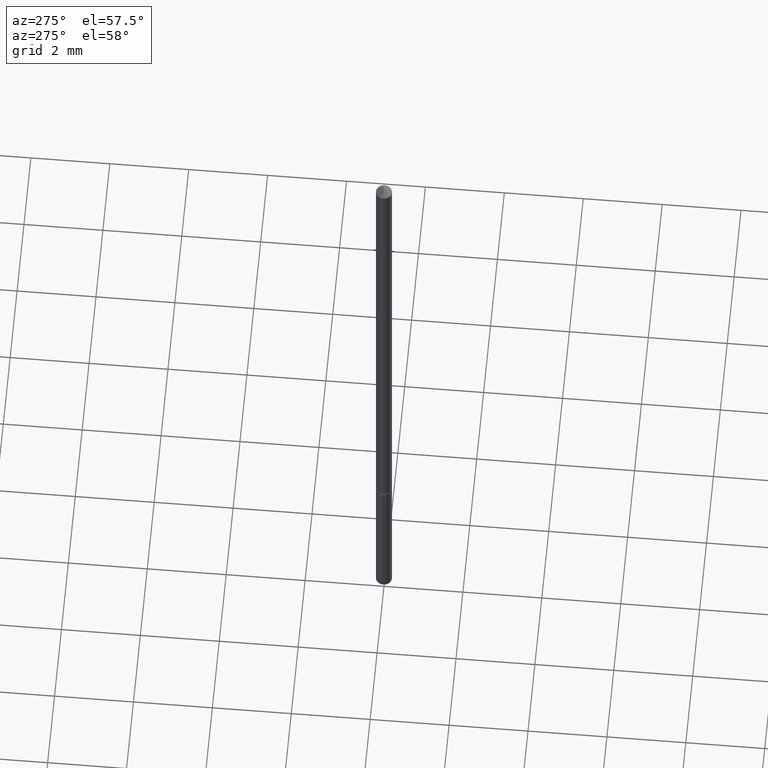
[diagram: clean part render]
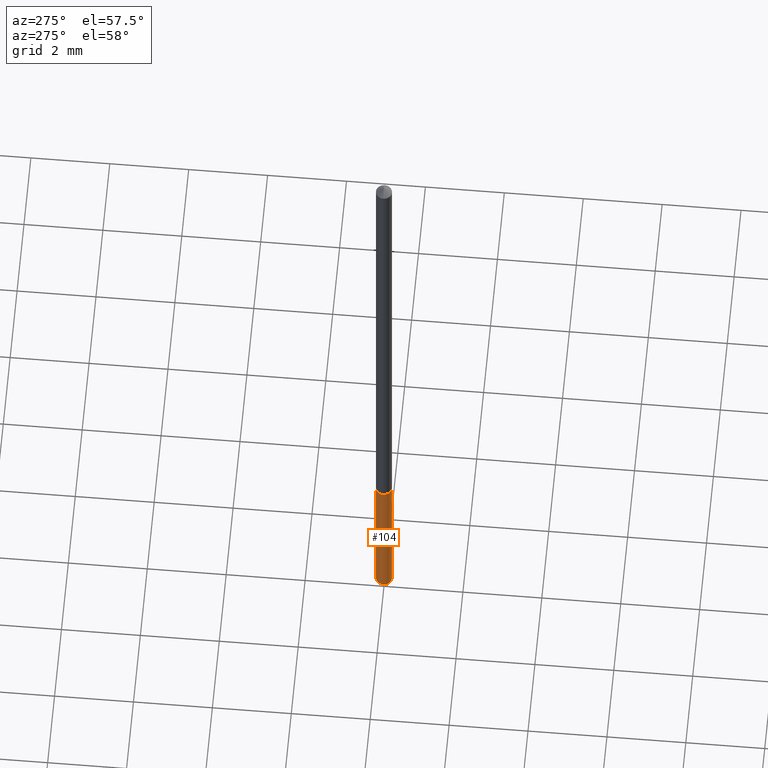
[diagram: same view with one face highlighted and labeled with its STEP entity id]
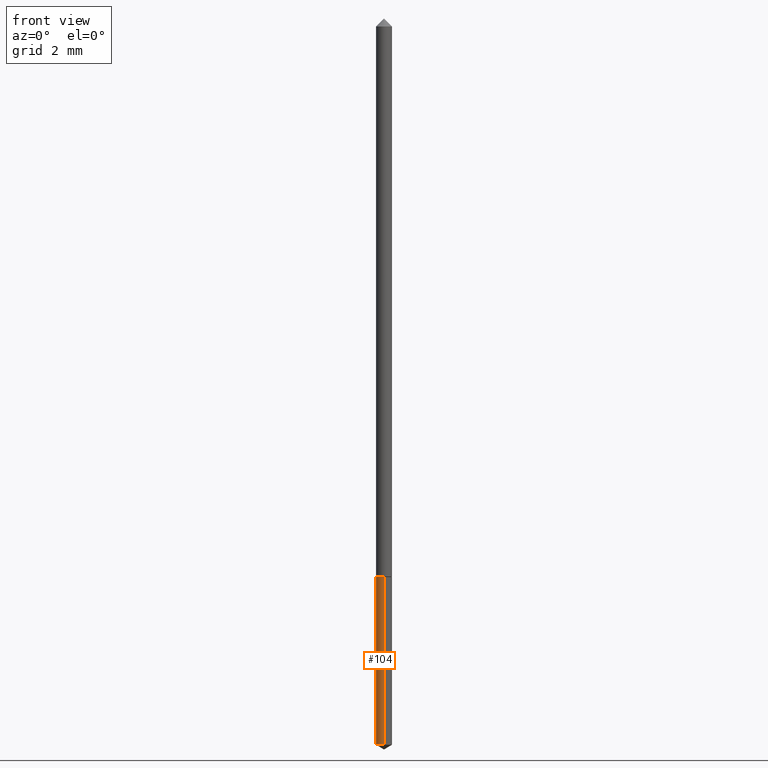
[diagram: same view with one face highlighted and labeled with its STEP entity id]
A machine part, auxiliary view. The second image highlights one B-rep face of the part: STEP entity #104.
A second angle (front view) of the same face is appended — the face is thin or edge-on in the first view.
In plain terms, the highlighted cylindrical surface (edge-blend (fillet) strip) has radius 0.2032 mm, axis along (-0, 0, 1).
Its self-contained STEP definition (entity closure, byte-faithful):
#11 = AXIS2_PLACEMENT_3D ( 'NONE', #157, #304, #21 ) ;
#21 = DIRECTION ( 'NONE',  ( -6.982962677686266711E-15, -1.000000000000000000, 0.000000000000000000 ) ) ;
#22 = EDGE_CURVE ( 'NONE', #256, #231, #147, .T. ) ;
#35 = ORIENTED_EDGE ( 'NONE', *, *, #194, .F. ) ;
#37 = DIRECTION ( 'NONE',  ( -2.446102391056605084E-29, 3.490574009245791295E-15, 1.000000000000000000 ) ) ;
#56 = CARTESIAN_POINT ( 'NONE',  ( 1.414703704378101696E-29, -2.019821954520759698E-15, -0.5785000000000000142 ) ) ;
#61 = CARTESIAN_POINT ( 'NONE',  ( 1.414703704378101696E-29, -2.019821954520759698E-15, -0.5785000000000000142 ) ) ;
#78 = LINE ( 'NONE', #335, #232 ) ;
#80 = CARTESIAN_POINT ( 'NONE',  ( 5.684341886082627079E-17, 0.007999999999997980948, -0.5785000000000000142 ) ) ;
#91 = LINE ( 'NONE', #153, #357 ) ;
#103 = CIRCLE ( 'NONE', #11, 0.008000000000000000167 ) ;
#104 = ADVANCED_FACE ( 'NONE', ( #155 ), #213, .T. ) ;
#109 = EDGE_LOOP ( 'NONE', ( #35, #141, #289, #128 ) ) ;
#113 = DIRECTION ( 'NONE',  ( -2.446102391056605084E-29, 3.490574009245791295E-15, 1.000000000000000000 ) ) ;
#125 = CARTESIAN_POINT ( 'NONE',  ( -5.586370142147598546E-17, -0.008000000000002021119, -0.5785000000000000142 ) ) ;
#128 = ORIENTED_EDGE ( 'NONE', *, *, #22, .F. ) ;
#141 = ORIENTED_EDGE ( 'NONE', *, *, #258, .T. ) ;
#147 = CIRCLE ( 'NONE', #334, 0.008000000000000000167 ) ;
#153 = CARTESIAN_POINT ( 'NONE',  ( -5.586370142147598546E-17, -0.008000000000002021119, -0.5785000000000000142 ) ) ;
#155 = FACE_OUTER_BOUND ( 'NONE', #109, .T. ) ;
#157 = CARTESIAN_POINT ( 'NONE',  ( 1.822452131669149345E-29, -2.601676609426758371E-15, -0.7451931150477797416 ) ) ;
#167 = EDGE_CURVE ( 'NONE', #169, #231, #91, .T. ) ;
#169 = VERTEX_POINT ( 'NONE', #323 ) ;
#171 = CARTESIAN_POINT ( 'NONE',  ( 5.684341886082623381E-17, 0.007999999999997398081, -0.7451931150477797416 ) ) ;
#194 = EDGE_CURVE ( 'NONE', #343, #256, #78, .T. ) ;
#210 = DIRECTION ( 'NONE',  ( -2.446102391056605084E-29, 3.490574009245791295E-15, 1.000000000000000000 ) ) ;
#213 = CYLINDRICAL_SURFACE ( 'NONE', #277, 0.008000000000000000167 ) ;
#231 = VERTEX_POINT ( 'NONE', #125 ) ;
#232 = VECTOR ( 'NONE', #250, 39.37007874015748143 ) ;
#250 = DIRECTION ( 'NONE',  ( -2.446102391056605084E-29, 3.490574009245791295E-15, 1.000000000000000000 ) ) ;
#256 = VERTEX_POINT ( 'NONE', #80 ) ;
#258 = EDGE_CURVE ( 'NONE', #343, #169, #103, .T. ) ;
#277 = AXIS2_PLACEMENT_3D ( 'NONE', #61, #210, #325 ) ;
#289 = ORIENTED_EDGE ( 'NONE', *, *, #167, .T. ) ;
#304 = DIRECTION ( 'NONE',  ( -2.446102391056605084E-29, 3.490574009245791295E-15, 1.000000000000000000 ) ) ;
#323 = CARTESIAN_POINT ( 'NONE',  ( -5.586370142147189325E-17, -0.008000000000002600517, -0.7451931150477797416 ) ) ;
#325 = DIRECTION ( 'NONE',  ( -6.982962677686266711E-15, -1.000000000000000000, 0.000000000000000000 ) ) ;
#334 = AXIS2_PLACEMENT_3D ( 'NONE', #56, #113, #354 ) ;
#335 = CARTESIAN_POINT ( 'NONE',  ( 5.684341886082215392E-17, 0.007999999999997980948, -0.5785000000000000142 ) ) ;
#343 = VERTEX_POINT ( 'NONE', #171 ) ;
#354 = DIRECTION ( 'NONE',  ( -6.982962677686266711E-15, -1.000000000000000000, 0.000000000000000000 ) ) ;
#357 = VECTOR ( 'NONE', #37, 39.37007874015748143 ) ;